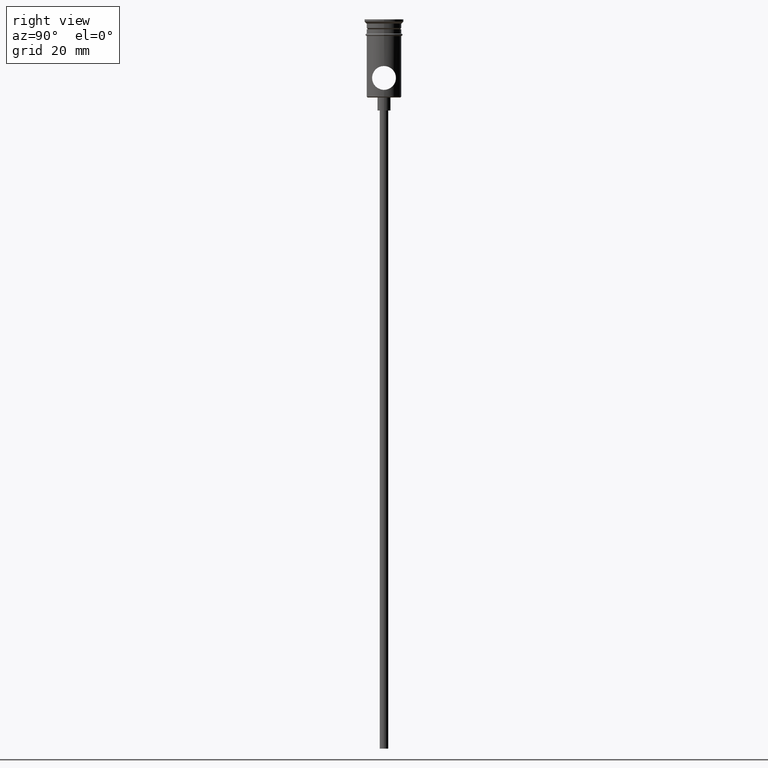
[diagram: clean part render]
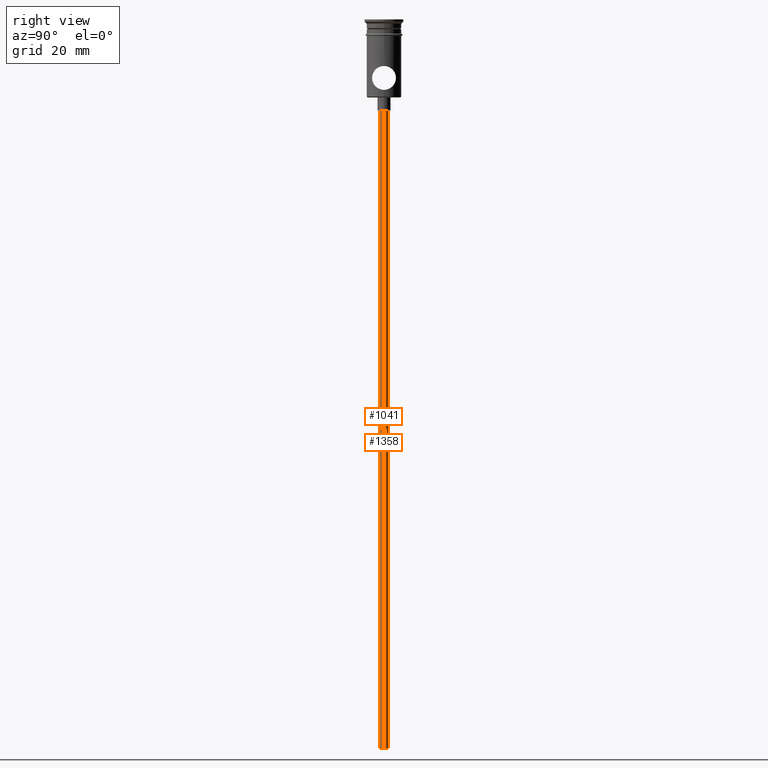
[diagram: same view with one multi-face feature highlighted, each face labeled with its STEP entity id]
A machine part, right view. The highlighted faces form ONE feature: a constant-radius fillet chain: 2 tangent blend faces with common blend radius 1 mm. The faces share edges in the B-rep.
Their STEP definitions:
[1] entity #1041 (Cylinder):
#25 = DIRECTION ( 'NONE',  ( 0.000000000000000000, 0.000000000000000000, -1.000000000000000000 ) ) ;
#54 = ORIENTED_EDGE ( 'NONE', *, *, #907, .F. ) ;
#68 = DIRECTION ( 'NONE',  ( -0.000000000000000000, -0.000000000000000000, 1.000000000000000000 ) ) ;
#138 = CARTESIAN_POINT ( 'NONE',  ( -0.9999999999999997780, 1.224646799147352961E-16, -167.9999999999999716 ) ) ;
#149 = VECTOR ( 'NONE', #441, 1000.000000000000000 ) ;
#169 = AXIS2_PLACEMENT_3D ( 'NONE', #1165, #753, #314 ) ;
#206 = FACE_OUTER_BOUND ( 'NONE', #294, .T. ) ;
#241 = LINE ( 'NONE', #138, #631 ) ;
#259 = CIRCLE ( 'NONE', #169, 0.9999999999999997780 ) ;
#294 = EDGE_LOOP ( 'NONE', ( #54, #588, #1252, #1392 ) ) ;
#314 = DIRECTION ( 'NONE',  ( -1.000000000000000000, 0.000000000000000000, 0.000000000000000000 ) ) ;
#441 = DIRECTION ( 'NONE',  ( -0.000000000000000000, -0.000000000000000000, 1.000000000000000000 ) ) ;
#450 = CARTESIAN_POINT ( 'NONE',  ( 0.000000000000000000, 0.000000000000000000, -167.9999999999999716 ) ) ;
#501 = DIRECTION ( 'NONE',  ( 1.000000000000000000, 0.000000000000000000, 0.000000000000000000 ) ) ;
#545 = EDGE_CURVE ( 'NONE', #592, #626, #259, .T. ) ;
#588 = ORIENTED_EDGE ( 'NONE', *, *, #1098, .F. ) ;
#592 = VERTEX_POINT ( 'NONE', #1346 ) ;
#607 = CARTESIAN_POINT ( 'NONE',  ( 0.000000000000000000, 0.000000000000000000, -167.9999999999999716 ) ) ;
#623 = CYLINDRICAL_SURFACE ( 'NONE', #1134, 0.9999999999999997780 ) ;
#626 = VERTEX_POINT ( 'NONE', #1172 ) ;
#631 = VECTOR ( 'NONE', #1345, 1000.000000000000000 ) ;
#753 = DIRECTION ( 'NONE',  ( 0.000000000000000000, 0.000000000000000000, -1.000000000000000000 ) ) ;
#817 = CARTESIAN_POINT ( 'NONE',  ( -0.9999999999999997780, 1.224646799147352961E-16, -167.9999999999999716 ) ) ;
#828 = CIRCLE ( 'NONE', #1393, 0.9999999999999997780 ) ;
#879 = LINE ( 'NONE', #971, #149 ) ;
#907 = EDGE_CURVE ( 'NONE', #1046, #626, #241, .T. ) ;
#920 = VERTEX_POINT ( 'NONE', #1342 ) ;
#971 = CARTESIAN_POINT ( 'NONE',  ( 0.9999999999999997780, 0.000000000000000000, -167.9999999999999716 ) ) ;
#977 = DIRECTION ( 'NONE',  ( -1.000000000000000000, 0.000000000000000000, 0.000000000000000000 ) ) ;
#1041 = ADVANCED_FACE ( 'NONE', ( #206 ), #623, .T. ) ;
#1046 = VERTEX_POINT ( 'NONE', #817 ) ;
#1081 = EDGE_CURVE ( 'NONE', #920, #592, #879, .T. ) ;
#1098 = EDGE_CURVE ( 'NONE', #920, #1046, #828, .T. ) ;
#1134 = AXIS2_PLACEMENT_3D ( 'NONE', #607, #68, #501 ) ;
#1165 = CARTESIAN_POINT ( 'NONE',  ( 0.000000000000000000, 0.000000000000000000, -20.99999999999999645 ) ) ;
#1172 = CARTESIAN_POINT ( 'NONE',  ( -0.9999999999999997780, 1.224646799147352961E-16, -20.99999999999999645 ) ) ;
#1252 = ORIENTED_EDGE ( 'NONE', *, *, #1081, .T. ) ;
#1342 = CARTESIAN_POINT ( 'NONE',  ( 0.9999999999999997780, 0.000000000000000000, -167.9999999999999716 ) ) ;
#1345 = DIRECTION ( 'NONE',  ( -0.000000000000000000, -0.000000000000000000, 1.000000000000000000 ) ) ;
#1346 = CARTESIAN_POINT ( 'NONE',  ( 0.9999999999999997780, 0.000000000000000000, -20.99999999999999645 ) ) ;
#1392 = ORIENTED_EDGE ( 'NONE', *, *, #545, .T. ) ;
#1393 = AXIS2_PLACEMENT_3D ( 'NONE', #450, #25, #977 ) ;
[2] entity #1358 (Cylinder):
#120 = DIRECTION ( 'NONE',  ( -1.000000000000000000, 0.000000000000000000, 0.000000000000000000 ) ) ;
#135 = CARTESIAN_POINT ( 'NONE',  ( 0.000000000000000000, 0.000000000000000000, -167.9999999999999716 ) ) ;
#138 = CARTESIAN_POINT ( 'NONE',  ( -0.9999999999999997780, 1.224646799147352961E-16, -167.9999999999999716 ) ) ;
#149 = VECTOR ( 'NONE', #441, 1000.000000000000000 ) ;
#221 = DIRECTION ( 'NONE',  ( 0.000000000000000000, 0.000000000000000000, -1.000000000000000000 ) ) ;
#238 = AXIS2_PLACEMENT_3D ( 'NONE', #135, #221, #1090 ) ;
#241 = LINE ( 'NONE', #138, #631 ) ;
#271 = EDGE_LOOP ( 'NONE', ( #507, #795, #1022, #738 ) ) ;
#338 = CIRCLE ( 'NONE', #669, 0.9999999999999997780 ) ;
#359 = AXIS2_PLACEMENT_3D ( 'NONE', #1142, #497, #400 ) ;
#400 = DIRECTION ( 'NONE',  ( 1.000000000000000000, 0.000000000000000000, 0.000000000000000000 ) ) ;
#441 = DIRECTION ( 'NONE',  ( -0.000000000000000000, -0.000000000000000000, 1.000000000000000000 ) ) ;
#497 = DIRECTION ( 'NONE',  ( -0.000000000000000000, -0.000000000000000000, 1.000000000000000000 ) ) ;
#507 = ORIENTED_EDGE ( 'NONE', *, *, #1146, .F. ) ;
#573 = EDGE_CURVE ( 'NONE', #626, #592, #338, .T. ) ;
#592 = VERTEX_POINT ( 'NONE', #1346 ) ;
#626 = VERTEX_POINT ( 'NONE', #1172 ) ;
#631 = VECTOR ( 'NONE', #1345, 1000.000000000000000 ) ;
#669 = AXIS2_PLACEMENT_3D ( 'NONE', #1083, #827, #120 ) ;
#738 = ORIENTED_EDGE ( 'NONE', *, *, #1081, .F. ) ;
#795 = ORIENTED_EDGE ( 'NONE', *, *, #907, .T. ) ;
#817 = CARTESIAN_POINT ( 'NONE',  ( -0.9999999999999997780, 1.224646799147352961E-16, -167.9999999999999716 ) ) ;
#827 = DIRECTION ( 'NONE',  ( 0.000000000000000000, 0.000000000000000000, -1.000000000000000000 ) ) ;
#879 = LINE ( 'NONE', #971, #149 ) ;
#907 = EDGE_CURVE ( 'NONE', #1046, #626, #241, .T. ) ;
#920 = VERTEX_POINT ( 'NONE', #1342 ) ;
#971 = CARTESIAN_POINT ( 'NONE',  ( 0.9999999999999997780, 0.000000000000000000, -167.9999999999999716 ) ) ;
#973 = CIRCLE ( 'NONE', #238, 0.9999999999999997780 ) ;
#1022 = ORIENTED_EDGE ( 'NONE', *, *, #573, .T. ) ;
#1046 = VERTEX_POINT ( 'NONE', #817 ) ;
#1081 = EDGE_CURVE ( 'NONE', #920, #592, #879, .T. ) ;
#1083 = CARTESIAN_POINT ( 'NONE',  ( 0.000000000000000000, 0.000000000000000000, -20.99999999999999645 ) ) ;
#1090 = DIRECTION ( 'NONE',  ( -1.000000000000000000, 0.000000000000000000, 0.000000000000000000 ) ) ;
#1142 = CARTESIAN_POINT ( 'NONE',  ( 0.000000000000000000, 0.000000000000000000, -167.9999999999999716 ) ) ;
#1146 = EDGE_CURVE ( 'NONE', #1046, #920, #973, .T. ) ;
#1172 = CARTESIAN_POINT ( 'NONE',  ( -0.9999999999999997780, 1.224646799147352961E-16, -20.99999999999999645 ) ) ;
#1260 = FACE_OUTER_BOUND ( 'NONE', #271, .T. ) ;
#1342 = CARTESIAN_POINT ( 'NONE',  ( 0.9999999999999997780, 0.000000000000000000, -167.9999999999999716 ) ) ;
#1345 = DIRECTION ( 'NONE',  ( -0.000000000000000000, -0.000000000000000000, 1.000000000000000000 ) ) ;
#1346 = CARTESIAN_POINT ( 'NONE',  ( 0.9999999999999997780, 0.000000000000000000, -20.99999999999999645 ) ) ;
#1358 = ADVANCED_FACE ( 'NONE', ( #1260 ), #1366, .T. ) ;
#1366 = CYLINDRICAL_SURFACE ( 'NONE', #359, 0.9999999999999997780 ) ;